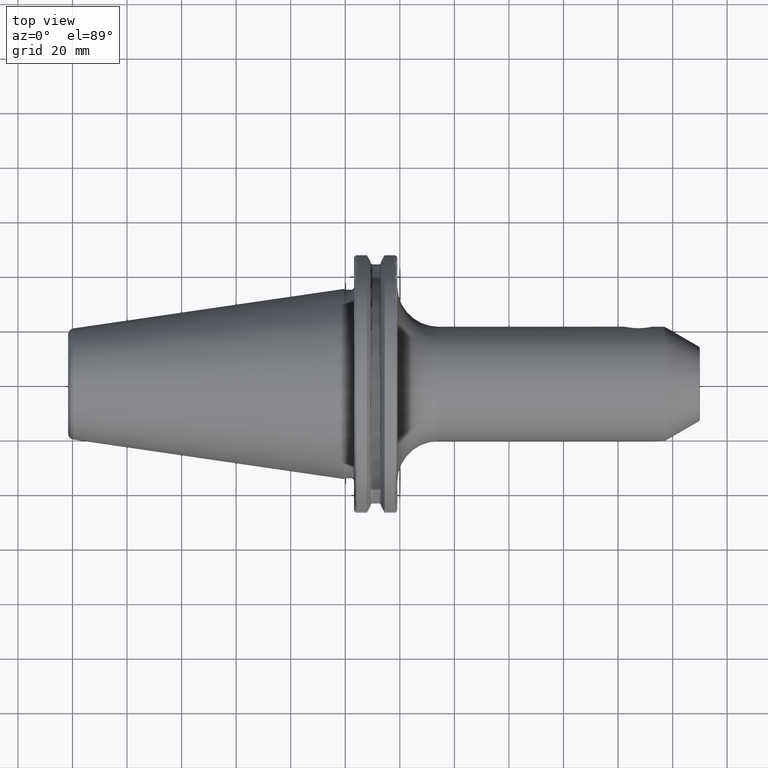
[diagram: clean part render]
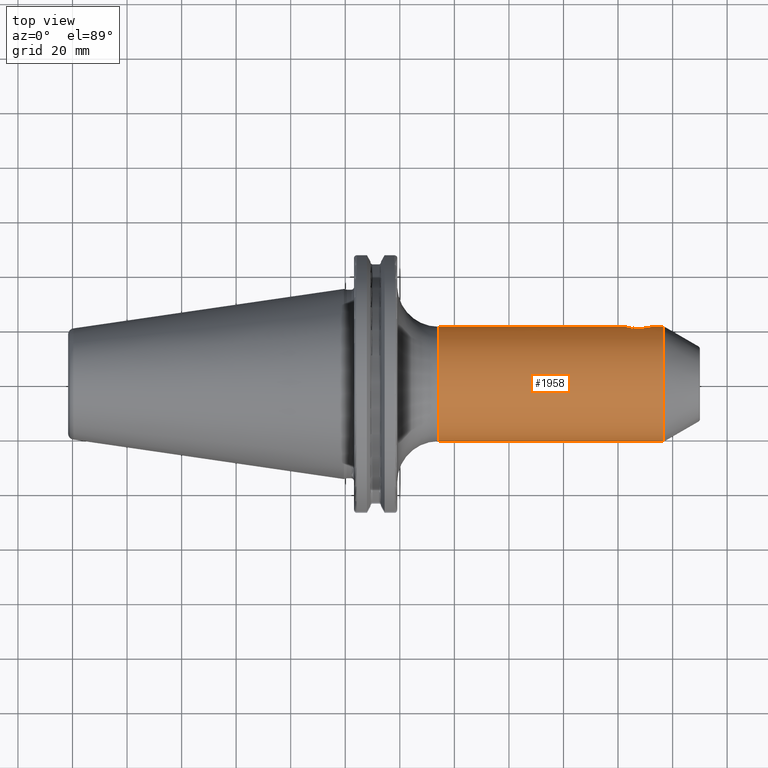
[diagram: same view with one face highlighted and labeled with its STEP entity id]
A machine part, top view. The second image highlights one B-rep face of the part: STEP entity #1958.
In plain terms, the highlighted cylindrical surface (partial cylindrical patch) has radius 21 mm, axis along (1, 0, 0).
Its self-contained STEP definition (entity closure, byte-faithful):
#200=CARTESIAN_POINT('',(1.126E2,2.1E1,0.E0));
#201=CARTESIAN_POINT('',(1.126E2,2.1E1,2.623376702258E-1));
#202=CARTESIAN_POINT('',(1.125601607628E2,2.099026924720E1,7.811625122680E-1));
#203=CARTESIAN_POINT('',(1.123794978933E2,2.094712789705E1,1.552033353512E0));
#204=CARTESIAN_POINT('',(1.120838670670E2,2.087973807864E1,2.280904952248E0));
#205=CARTESIAN_POINT('',(1.116832281895E2,2.079485166141E1,2.951486900849E0));
#206=CARTESIAN_POINT('',(1.111890711669E2,2.070035424808E1,3.550250839451E0));
#207=CARTESIAN_POINT('',(1.105984409981E2,2.060240851364E1,4.076937191771E0));
#208=CARTESIAN_POINT('',(1.099254700237E2,2.051119661626E1,4.510066366135E0));
#209=CARTESIAN_POINT('',(1.091891788667E2,2.043645791269E1,4.834873162072E0));
#210=CARTESIAN_POINT('',(1.083890799211E2,2.038501341118E1,5.045589592333E0));
#211=CARTESIAN_POINT('',(1.075301552779E2,2.036511064583E1,5.124558008627E0));
#212=CARTESIAN_POINT('',(1.066694423322E2,2.038249536009E1,5.055653983941E0));
#213=CARTESIAN_POINT('',(1.058642377168E2,2.043202503903E1,4.853428960728E0));
#214=CARTESIAN_POINT('',(1.051197735190E2,2.050578700947E1,4.534470200162E0));
#215=CARTESIAN_POINT('',(1.044368912692E2,2.059701933008E1,4.104039356690E0));
#216=CARTESIAN_POINT('',(1.038363805272E2,2.069575454629E1,3.577032393264E0));
#217=CARTESIAN_POINT('',(1.033337933261E2,2.079137791124E1,2.976136075316E0));
#218=CARTESIAN_POINT('',(1.029255211603E2,2.087764383266E1,2.300558330498E0));
#219=CARTESIAN_POINT('',(1.026246505903E2,2.094614733752E1,1.566204122782E0));
#220=CARTESIAN_POINT('',(1.024405981130E2,2.099008253586E1,7.885310233556E-1));
#221=CARTESIAN_POINT('',(1.024E2,2.1E1,2.648719973202E-1));
#222=CARTESIAN_POINT('',(1.024E2,2.1E1,0.E0));
#224=CARTESIAN_POINT('',(1.167320508076E2,0.E0,0.E0));
#225=DIRECTION('',(-1.E0,0.E0,0.E0));
#226=DIRECTION('',(0.E0,-1.E0,0.E0));
#227=AXIS2_PLACEMENT_3D('',#224,#225,#226);
#229=CARTESIAN_POINT('',(3.405E1,0.E0,0.E0));
#230=DIRECTION('',(1.E0,0.E0,0.E0));
#231=DIRECTION('',(0.E0,1.E0,0.E0));
#232=AXIS2_PLACEMENT_3D('',#229,#230,#231);
#389=DIRECTION('',(-9.999999999925E-1,-4.883076305295E-11,3.873354785282E-6));
#390=VECTOR('',#389,6.835000000051E1);
#391=CARTESIAN_POINT('',(1.024E2,2.1E1,0.E0));
#392=LINE('',#391,#390);
#398=DIRECTION('',(-1.E0,0.E0,-1.923258739675E-13));
#399=VECTOR('',#398,8.268205080757E1);
#400=CARTESIAN_POINT('',(1.167320508076E2,-2.1E1,1.009245380515E-11));
#401=LINE('',#400,#399);
#407=DIRECTION('',(-1.E0,0.E0,2.442948453887E-12));
#408=VECTOR('',#407,4.132050807569E0);
#409=CARTESIAN_POINT('',(1.167320508076E2,2.1E1,-1.009309778315E-11));
#410=LINE('',#409,#408);
#1637=CARTESIAN_POINT('',(1.126E2,2.1E1,0.E0));
#1639=VERTEX_POINT('',#1637);
#1641=CARTESIAN_POINT('',(1.024E2,2.1E1,0.E0));
#1643=VERTEX_POINT('',#1641);
#1650=CARTESIAN_POINT('',(3.405E1,-2.1E1,0.E0));
#1651=CARTESIAN_POINT('',(3.405E1,2.1E1,0.E0));
#1652=VERTEX_POINT('',#1650);
#1653=VERTEX_POINT('',#1651);
#1656=CARTESIAN_POINT('',(1.167320508076E2,2.1E1,0.E0));
#1657=CARTESIAN_POINT('',(1.167320508076E2,-2.1E1,0.E0));
#1658=VERTEX_POINT('',#1656);
#1659=VERTEX_POINT('',#1657);
#1940=CARTESIAN_POINT('',(1.35025E1,0.E0,0.E0));
#1941=DIRECTION('',(1.E0,0.E0,0.E0));
#1942=DIRECTION('',(0.E0,-1.E0,0.E0));
#1943=AXIS2_PLACEMENT_3D('',#1940,#1941,#1942);
#1944=CYLINDRICAL_SURFACE('',#1943,2.1E1);
#1946=ORIENTED_EDGE('',*,*,#1945,.F.);
#1948=ORIENTED_EDGE('',*,*,#1947,.F.);
#1950=ORIENTED_EDGE('',*,*,#1949,.F.);
#1952=ORIENTED_EDGE('',*,*,#1951,.T.);
#1953=ORIENTED_EDGE('',*,*,#1934,.F.);
#1955=ORIENTED_EDGE('',*,*,#1954,.F.);
#1956=EDGE_LOOP('',(#1946,#1948,#1950,#1952,#1953,#1955));
#1957=FACE_OUTER_BOUND('',#1956,.F.);
#1958=ADVANCED_FACE('',(#1957),#1944,.T.);
#223=B_SPLINE_CURVE_WITH_KNOTS('',3,(#200,#201,#202,#203,#204,#205,#206,#207,
#208,#209,#210,#211,#212,#213,#214,#215,#216,#217,#218,#219,#220,#221,#222),
.UNSPECIFIED.,.F.,.F.,(4,1,1,1,1,1,1,1,1,1,1,1,1,1,1,1,1,1,1,1,4),(0.E0,5.E-2,
1.E-1,1.5E-1,2.E-1,2.5E-1,3.E-1,3.5E-1,4.E-1,4.5E-1,5.E-1,5.5E-1,6.E-1,6.5E-1,
7.E-1,7.5E-1,8.E-1,8.5E-1,9.E-1,9.5E-1,1.E0),.UNSPECIFIED.);
#228=CIRCLE('',#227,2.1E1);
#233=CIRCLE('',#232,2.1E1);
#1934=EDGE_CURVE('',#1653,#1652,#233,.T.);
#1945=EDGE_CURVE('',#1639,#1643,#223,.T.);
#1947=EDGE_CURVE('',#1658,#1639,#410,.T.);
#1949=EDGE_CURVE('',#1659,#1658,#228,.T.);
#1951=EDGE_CURVE('',#1659,#1652,#401,.T.);
#1954=EDGE_CURVE('',#1643,#1653,#392,.T.);